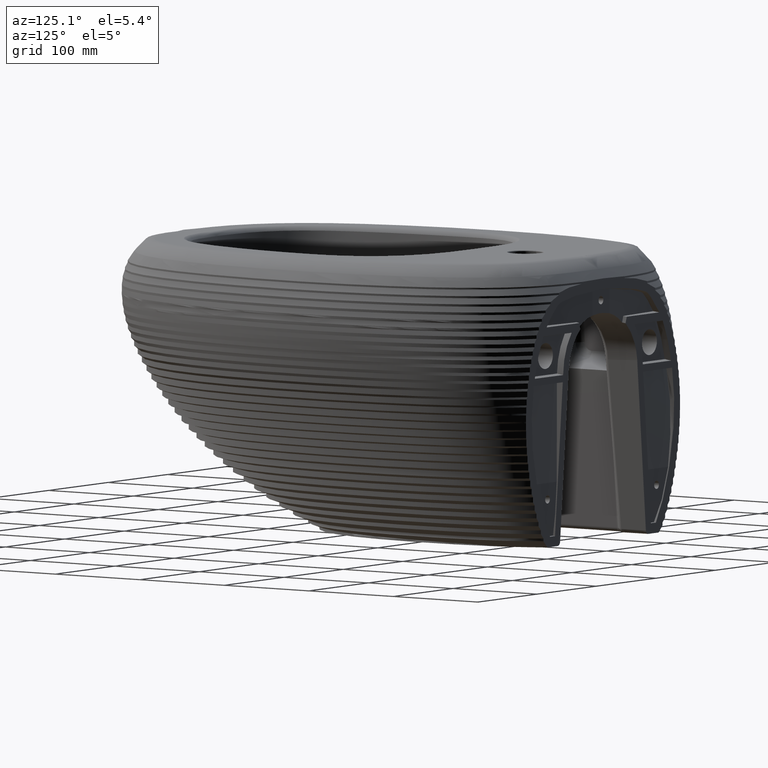
[diagram: clean part render]
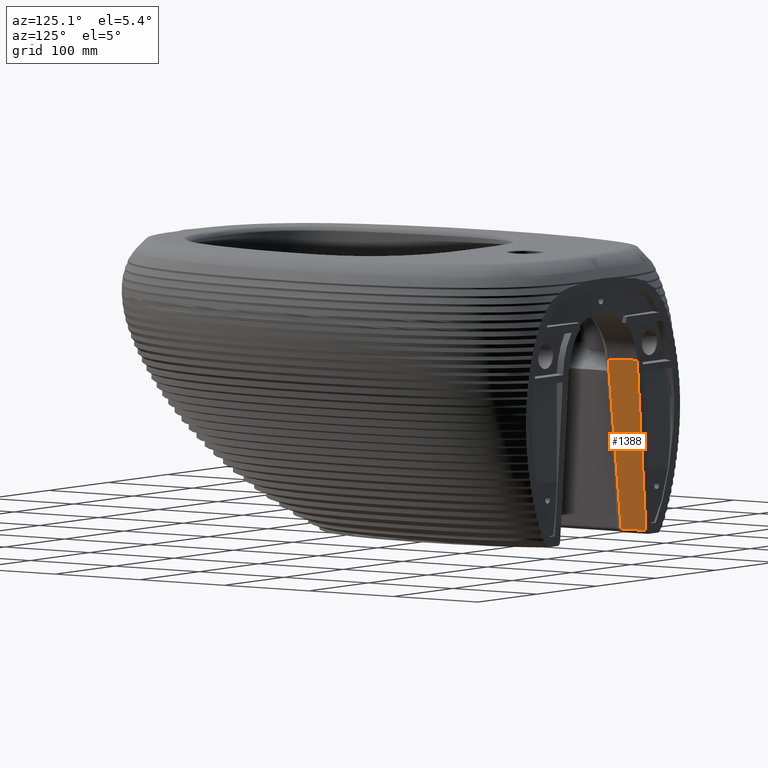
[diagram: same view with one face highlighted and labeled with its STEP entity id]
A machine part, auxiliary view. The second image highlights one B-rep face of the part: STEP entity #1388.
In plain terms, the highlighted face is a freeform B-spline surface patch.
Its self-contained STEP definition (entity closure, byte-faithful):
#207=B_SPLINE_SURFACE_WITH_KNOTS('',3,3,((#36491,#36492,#36493,#36494),
(#36495,#36496,#36497,#36498),(#36499,#36500,#36501,#36502),(#36503,#36504,
#36505,#36506)),.UNSPECIFIED.,.F.,.F.,.F.,(4,4),(4,4),(0.,1.),(0.,1.),
 .UNSPECIFIED.);
#815=B_SPLINE_CURVE_WITH_KNOTS('',3,(#6972,#6973,#6974,#6975,#6976,#6977,
#6978),.UNSPECIFIED.,.F.,.F.,(4,3,4),(0.,0.472842756871448,1.),
 .UNSPECIFIED.);
#1047=B_SPLINE_CURVE_WITH_KNOTS('',3,(#31171,#31172,#31173,#31174,#31175,
#31176,#31177,#31178,#31179,#31180),.UNSPECIFIED.,.F.,.F.,(4,3,3,4),(0.,
0.573970265926379,0.776642326281395,1.),.UNSPECIFIED.);
#1067=B_SPLINE_CURVE_WITH_KNOTS('',3,(#36473,#36474,#36475,#36476,#36477,
#36478,#36479,#36480,#36481,#36482),.UNSPECIFIED.,.F.,.F.,(4,3,3,4),(0.,
0.0601876920391329,0.300938460195666,1.),.UNSPECIFIED.);
#1068=B_SPLINE_CURVE_WITH_KNOTS('',3,(#36484,#36485,#36486,#36487,#36488,
#36489,#36490),.UNSPECIFIED.,.F.,.F.,(4,3,4),(0.,0.281179853451694,1.),
 .UNSPECIFIED.);
#1388=ADVANCED_FACE('',(#1753),#207,.T.);
#1753=FACE_OUTER_BOUND('',#2097,.T.);
#2097=EDGE_LOOP('',(#2947,#2948,#2949,#2950));
#2947=ORIENTED_EDGE('',*,*,#4947,.T.);
#2948=ORIENTED_EDGE('',*,*,#4948,.T.);
#2949=ORIENTED_EDGE('',*,*,#4578,.T.);
#2950=ORIENTED_EDGE('',*,*,#4922,.T.);
#4070=VERTEX_POINT('',#6979);
#4071=VERTEX_POINT('',#6980);
#4335=VERTEX_POINT('',#31170);
#4358=VERTEX_POINT('',#36483);
#4578=EDGE_CURVE('',#4070,#4071,#815,.T.);
#4922=EDGE_CURVE('',#4071,#4335,#1047,.T.);
#4947=EDGE_CURVE('',#4335,#4358,#1067,.T.);
#4948=EDGE_CURVE('',#4358,#4070,#1068,.T.);
#6972=CARTESIAN_POINT('',(-72.2007539490391,-3.44499998660168,49.0052158102454));
#6973=CARTESIAN_POINT('',(-69.9020545324667,-3.44499998660168,75.2623080453773));
#6974=CARTESIAN_POINT('',(-67.6033551158942,-3.44499998660146,101.519400280509));
#6975=CARTESIAN_POINT('',(-65.3046556993217,-3.44499998660146,127.776492515641));
#6976=CARTESIAN_POINT('',(-62.7419093537093,-3.44499998660146,157.049683558742));
#6977=CARTESIAN_POINT('',(-60.1791630080969,-3.44499998660146,186.322874601842));
#6978=CARTESIAN_POINT('',(-57.6164166624843,-3.44499998660146,215.596065644943));
#6979=CARTESIAN_POINT('',(-72.2007539490391,-3.44499998660168,49.0052158102454));
#6980=CARTESIAN_POINT('',(-57.6164166624843,-3.44499998660146,215.596065644943));
#31170=CARTESIAN_POINT('',(-56.5008984267689,-37.1416866995789,214.419351415674));
#31171=CARTESIAN_POINT('',(-57.6164166624843,-3.44499998660146,215.596065644943));
#31172=CARTESIAN_POINT('',(-57.4029918964065,-9.89196539776454,215.370932651894));
#31173=CARTESIAN_POINT('',(-57.1895671303689,-16.3389308089293,215.145799658855));
#31174=CARTESIAN_POINT('',(-56.9761423642477,-22.7858962200916,214.920666665826));
#31175=CARTESIAN_POINT('',(-56.9007809045199,-25.0623551945106,214.841170966728));
#31176=CARTESIAN_POINT('',(-56.8254194447816,-27.3388141689294,214.761675267632));
#31177=CARTESIAN_POINT('',(-56.7500579850274,-29.6152731433476,214.682179568537));
#31178=CARTESIAN_POINT('',(-56.667004798963,-32.1240776620921,214.594570184248));
#31179=CARTESIAN_POINT('',(-56.5839516128792,-34.6328821808359,214.50696079996));
#31180=CARTESIAN_POINT('',(-56.5008984267689,-37.1416866995789,214.419351415674));
#36473=CARTESIAN_POINT('',(-56.5008984267689,-37.1416866995789,214.419351415674));
#36474=CARTESIAN_POINT('',(-56.7952496872344,-37.0360827655123,211.100719731427));
#36475=CARTESIAN_POINT('',(-57.0896009476999,-36.9304788314457,207.782088047181));
#36476=CARTESIAN_POINT('',(-57.3839522081654,-36.8248748973791,204.463456362935));
#36477=CARTESIAN_POINT('',(-58.5613572500272,-36.4024591611125,191.18892962595));
#36478=CARTESIAN_POINT('',(-59.7387622918882,-35.9800434248458,177.914402888965));
#36479=CARTESIAN_POINT('',(-60.9161673337484,-35.5576276885789,164.63987615198));
#36480=CARTESIAN_POINT('',(-64.3349667329722,-34.331070459734,126.094989371402));
#36481=CARTESIAN_POINT('',(-67.7537661321896,-33.1045132308876,87.5501025908238));
#36482=CARTESIAN_POINT('',(-71.1725655314017,-31.8779560020397,49.0052158102452));
#36483=CARTESIAN_POINT('',(-71.1725655314017,-31.8779560020397,49.0052158102452));
#36484=CARTESIAN_POINT('',(-71.1725655314017,-31.8779560020397,49.0052158102452));
#36485=CARTESIAN_POINT('',(-71.2689341543151,-29.2130312001683,49.0052158102452));
#36486=CARTESIAN_POINT('',(-71.3653027772048,-26.5481063982962,49.0052158102452));
#36487=CARTESIAN_POINT('',(-71.4616714000791,-23.8831815964234,49.0052158102452));
#36488=CARTESIAN_POINT('',(-71.7080322497872,-17.0704543931515,49.0052158102451));
#36489=CARTESIAN_POINT('',(-71.954393099395,-10.2577271898759,49.0052158102451));
#36490=CARTESIAN_POINT('',(-72.2007539490391,-3.44499998660168,49.0052158102454));
#36491=CARTESIAN_POINT('',(-72.2081786303171,-3.23968194122277,49.0052158102255));
#36492=CARTESIAN_POINT('',(-71.790746549692,-14.7831187147399,49.0052158099885));
#36493=CARTESIAN_POINT('',(-71.3733144691269,-26.3265554882994,49.0052158102709));
#36494=CARTESIAN_POINT('',(-70.955882388024,-37.8699922619399,49.0052158102644));
#36495=CARTESIAN_POINT('',(-67.3239511987095,-3.06305921971313,104.868680788136));
#36496=CARTESIAN_POINT('',(-66.9065191180761,-14.6064959931212,104.868680787948));
#36497=CARTESIAN_POINT('',(-66.4890870375222,-26.1499327666072,104.868680788172));
#36498=CARTESIAN_POINT('',(-66.0716549564224,-37.6933695402372,104.868680788167));
#36499=CARTESIAN_POINT('',(-62.4397237671019,-2.88643649820341,160.732145766046));
#36500=CARTESIAN_POINT('',(-62.02229168646,-14.4298732715111,160.732145765909));
#36501=CARTESIAN_POINT('',(-61.6048596059175,-25.973310044915,160.732145766073));
#36502=CARTESIAN_POINT('',(-61.1874275248208,-37.5167468185345,160.732145766069));
#36503=CARTESIAN_POINT('',(-57.5554963354943,-2.70981377669377,216.595610743957));
#36504=CARTESIAN_POINT('',(-57.138064254844,-14.2532505498923,216.595610743869));
#36505=CARTESIAN_POINT('',(-56.7206321743128,-25.7966873232228,216.595610743974));
#36506=CARTESIAN_POINT('',(-56.3032000932191,-37.3401240968319,216.595610743971));